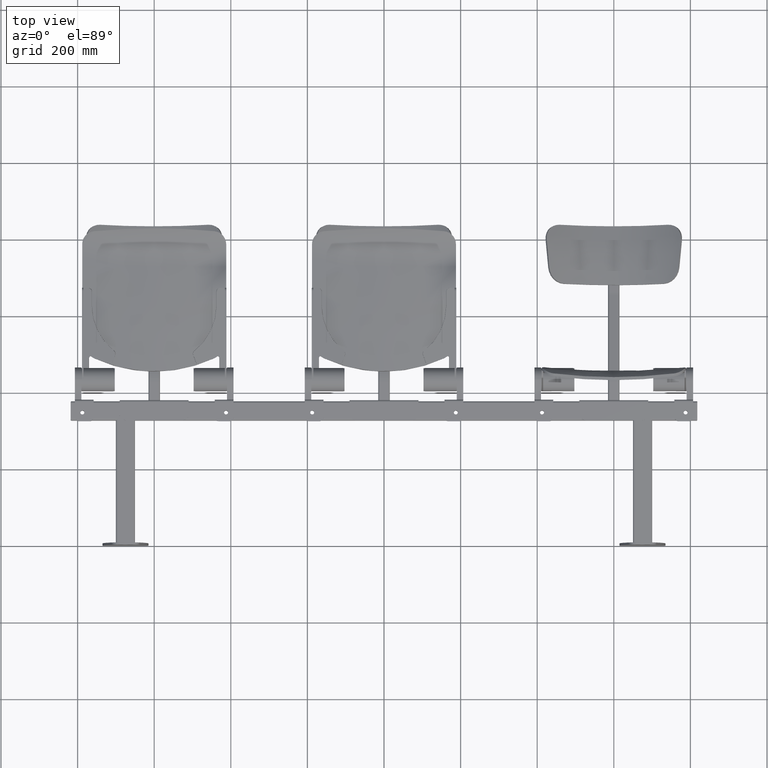
[diagram: clean part render]
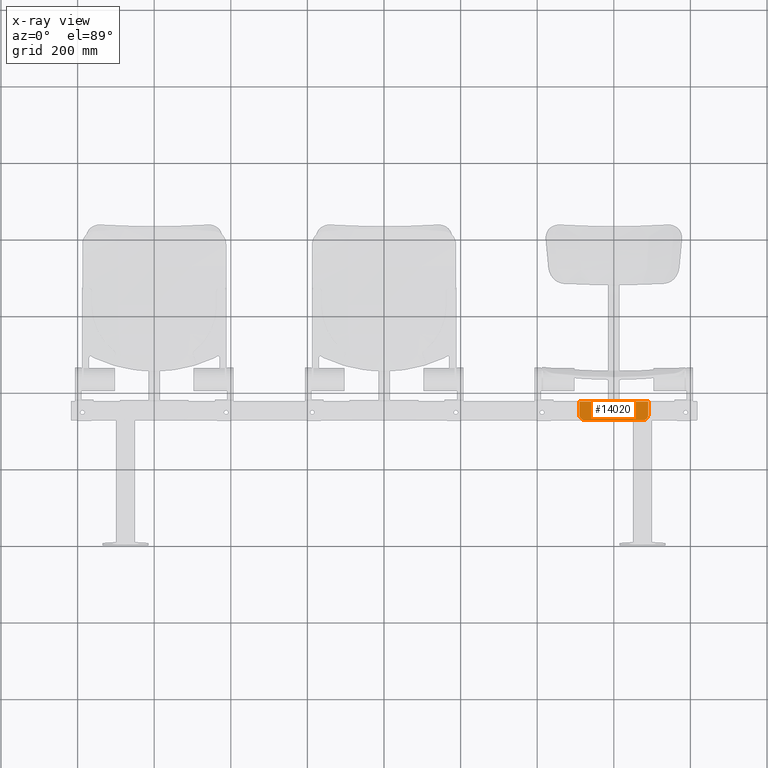
[diagram: x-ray — body ghosted, one internal face saturated and labeled with its STEP entity id]
A machine part, top view, then the same camera in x-ray: the body is ghosted and one INTERNAL B-rep face — a face not visible from any outside direction — is saturated and labeled: STEP entity #14020.
In plain terms, the highlighted planar face has unit normal (0, 0, -1).
Its self-contained STEP definition (entity closure, byte-faithful):
#233 = AXIS2_PLACEMENT_3D ( 'NONE', #23054, #23059, #23060 ) ;
#822 = VERTEX_POINT ( 'NONE', #11360 ) ;
#825 = VERTEX_POINT ( 'NONE', #11363 ) ;
#858 = VERTEX_POINT ( 'NONE', #11396 ) ;
#875 = VERTEX_POINT ( 'NONE', #11413 ) ;
#1949 = LINE ( 'NONE', #2248, #1985 ) ;
#1979 = LINE ( 'NONE', #2245, #1982 ) ;
#1981 = CIRCLE ( 'NONE', #10548, 15.00000000000000200 ) ;
#1982 = VECTOR ( 'NONE', #2246, 1000.000000000000000 ) ;
#1983 = LINE ( 'NONE', #2247, #1987 ) ;
#1985 = VECTOR ( 'NONE', #2241, 1000.000000000000000 ) ;
#1986 = LINE ( 'NONE', #2253, #1989 ) ;
#1987 = VECTOR ( 'NONE', #2252, 1000.000000000000000 ) ;
#1988 = CIRCLE ( 'NONE', #10549, 15.00000000000000200 ) ;
#1989 = VECTOR ( 'NONE', #2254, 1000.000000000000000 ) ;
#2241 = DIRECTION ( 'NONE',  ( 0.0000000000000000000, -1.000000000000000000, -1.416100796715760900E-016 ) ) ;
#2245 = CARTESIAN_POINT ( 'NONE',  ( 90.00000000000000000, 0.0000000000000000000, -50.00000000000000700 ) ) ;
#2246 = DIRECTION ( 'NONE',  ( -1.000000000000000000, -0.0000000000000000000, -0.0000000000000000000 ) ) ;
#2247 = CARTESIAN_POINT ( 'NONE',  ( 90.00000000000000000, 49.00000000000000000, -50.00000000000000000 ) ) ;
#2248 = CARTESIAN_POINT ( 'NONE',  ( 90.00000000000000000, 49.00000000000000000, -50.00000000000000000 ) ) ;
#2249 = CARTESIAN_POINT ( 'NONE',  ( 75.00000000000000000, 14.99999999999999800, -50.00000000000000700 ) ) ;
#2250 = DIRECTION ( 'NONE',  ( -0.0000000000000000000, -1.416100796715760900E-016, 1.000000000000000000 ) ) ;
#2251 = DIRECTION ( 'NONE',  ( 0.0000000000000000000, 1.000000000000000000, 0.0000000000000000000 ) ) ;
#2252 = DIRECTION ( 'NONE',  ( -1.000000000000000000, -0.0000000000000000000, -0.0000000000000000000 ) ) ;
#2253 = CARTESIAN_POINT ( 'NONE',  ( -90.00000000000000000, 49.00000000000000000, -50.00000000000000000 ) ) ;
#2254 = DIRECTION ( 'NONE',  ( 0.0000000000000000000, -1.000000000000000000, -1.416100796715760900E-016 ) ) ;
#2257 = CARTESIAN_POINT ( 'NONE',  ( -75.00000000000000000, 14.99999999999999800, -50.00000000000000700 ) ) ;
#2258 = DIRECTION ( 'NONE',  ( -0.0000000000000000000, -1.416100796715760900E-016, 1.000000000000000000 ) ) ;
#2259 = DIRECTION ( 'NONE',  ( 0.0000000000000000000, 1.000000000000000000, 0.0000000000000000000 ) ) ;
#5570 = EDGE_CURVE ( 'NONE', #11214, #22225, #1979, .T. ) ;
#5571 = EDGE_CURVE ( 'NONE', #11214, #825, #1981, .T. ) ;
#5572 = EDGE_CURVE ( 'NONE', #822, #825, #1949, .T. ) ;
#5573 = EDGE_CURVE ( 'NONE', #822, #858, #1983, .T. ) ;
#5574 = EDGE_CURVE ( 'NONE', #858, #875, #1986, .T. ) ;
#5575 = EDGE_CURVE ( 'NONE', #875, #22225, #1988, .T. ) ;
#10548 = AXIS2_PLACEMENT_3D ( 'NONE', #2249, #2250, #2251 ) ;
#10549 = AXIS2_PLACEMENT_3D ( 'NONE', #2257, #2258, #2259 ) ;
#10793 = FACE_OUTER_BOUND ( 'NONE', #12895, .T. ) ;
#11214 = VERTEX_POINT ( 'NONE', #22708 ) ;
#11360 = CARTESIAN_POINT ( 'NONE',  ( 90.00000000000000000, 49.00000000000000000, -50.00000000000000000 ) ) ;
#11363 = CARTESIAN_POINT ( 'NONE',  ( 90.00000000000000000, 15.00000000000000000, -50.00000000000000700 ) ) ;
#11396 = CARTESIAN_POINT ( 'NONE',  ( -90.00000000000000000, 49.00000000000000000, -50.00000000000000000 ) ) ;
#11413 = CARTESIAN_POINT ( 'NONE',  ( -90.00000000000000000, 15.00000000000000000, -50.00000000000000700 ) ) ;
#12895 = EDGE_LOOP ( 'NONE', ( #23865, #23866, #23863, #23864, #23855, #23856 ) ) ;
#14020 = ADVANCED_FACE ( 'NONE', ( #10793 ), #23052, .F. ) ;
#21774 = CARTESIAN_POINT ( 'NONE',  ( -74.99999999999992900, 0.0000000000000000000, -50.00000000000000700 ) ) ;
#22225 = VERTEX_POINT ( 'NONE', #21774 ) ;
#22708 = CARTESIAN_POINT ( 'NONE',  ( 75.00000000000000000, 0.0000000000000000000, -50.00000000000000700 ) ) ;
#23052 = PLANE ( 'NONE',  #233 ) ;
#23054 = CARTESIAN_POINT ( 'NONE',  ( 90.00000000000000000, 49.00000000000000000, -50.00000000000000000 ) ) ;
#23059 = DIRECTION ( 'NONE',  ( 0.0000000000000000000, 1.416100796715760900E-016, -1.000000000000000000 ) ) ;
#23060 = DIRECTION ( 'NONE',  ( 0.0000000000000000000, 1.000000000000000000, 1.416100796715760900E-016 ) ) ;
#23855 = ORIENTED_EDGE ( 'NONE', *, *, #5574, .T. ) ;
#23856 = ORIENTED_EDGE ( 'NONE', *, *, #5575, .T. ) ;
#23863 = ORIENTED_EDGE ( 'NONE', *, *, #5572, .F. ) ;
#23864 = ORIENTED_EDGE ( 'NONE', *, *, #5573, .T. ) ;
#23865 = ORIENTED_EDGE ( 'NONE', *, *, #5570, .F. ) ;
#23866 = ORIENTED_EDGE ( 'NONE', *, *, #5571, .T. ) ;